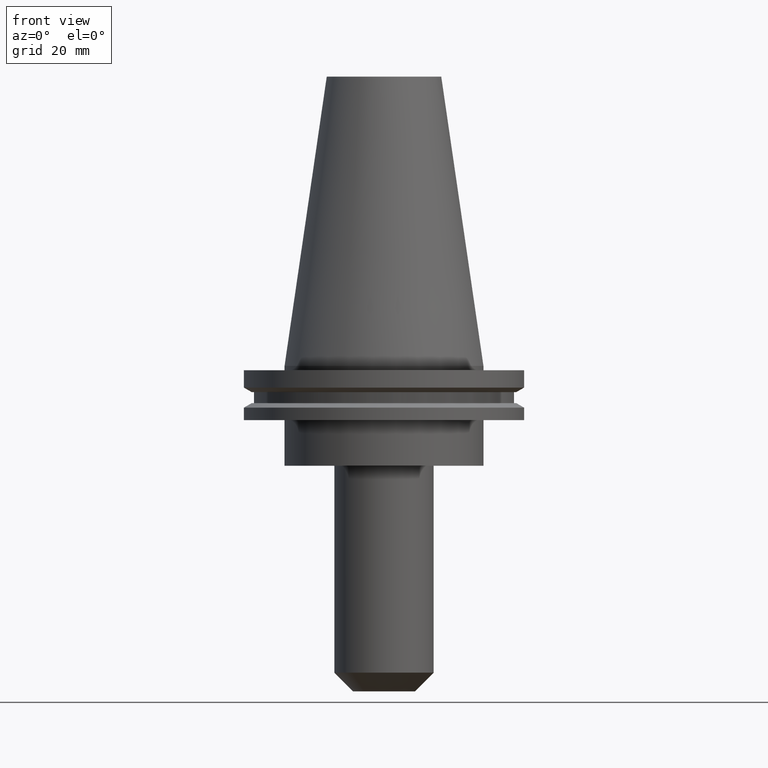
[diagram: clean part render]
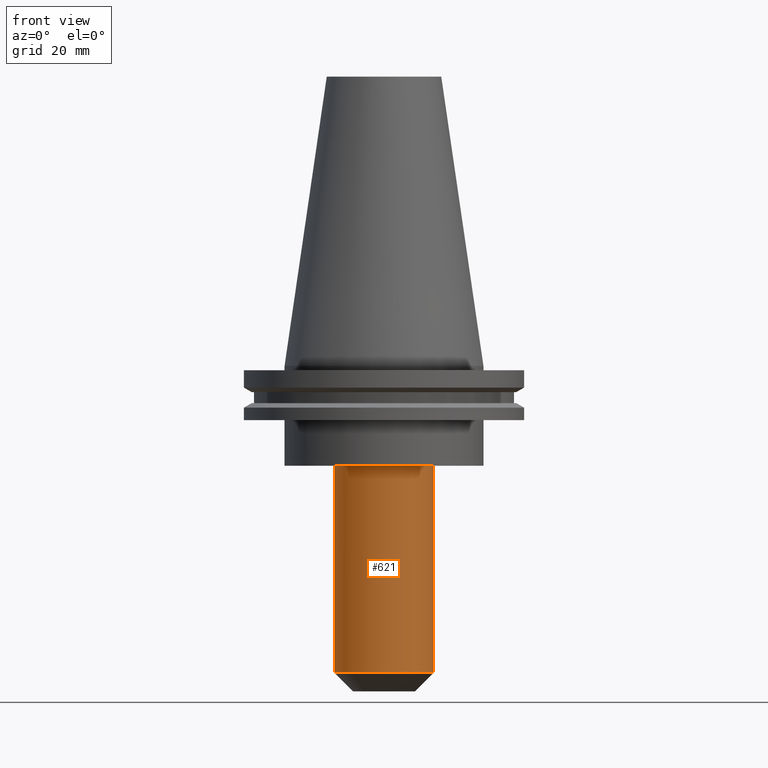
[diagram: same view with one face highlighted and labeled with its STEP entity id]
A machine part, front view. The second image highlights one B-rep face of the part: STEP entity #621.
In plain terms, the highlighted cylindrical surface (partial cylindrical patch) has radius 17.45 mm, axis along (-0, -0, 1).
Its self-contained STEP definition (entity closure, byte-faithful):
#5 = DIRECTION ( 'NONE',  ( -0.000000000000000000, -0.000000000000000000, 1.000000000000000000 ) ) ;
#9 = CARTESIAN_POINT ( 'NONE',  ( 0.000000000000000000, 0.000000000000000000, 0.000000000000000000 ) ) ;
#65 = VERTEX_POINT ( 'NONE', #692 ) ;
#74 = DIRECTION ( 'NONE',  ( -0.000000000000000000, -0.000000000000000000, 1.000000000000000000 ) ) ;
#84 = CARTESIAN_POINT ( 'NONE',  ( -17.44999999999999218, 2.137008664512130386E-15, -107.7000000000000028 ) ) ;
#145 = ORIENTED_EDGE ( 'NONE', *, *, #822, .T. ) ;
#161 = ORIENTED_EDGE ( 'NONE', *, *, #810, .T. ) ;
#164 = VECTOR ( 'NONE', #610, 1000.000000000000000 ) ;
#197 = ORIENTED_EDGE ( 'NONE', *, *, #593, .F. ) ;
#198 = EDGE_CURVE ( 'NONE', #335, #364, #533, .T. ) ;
#206 = DIRECTION ( 'NONE',  ( 1.000000000000000000, 0.000000000000000000, 0.000000000000000000 ) ) ;
#207 = VECTOR ( 'NONE', #5, 1000.000000000000000 ) ;
#211 = DIRECTION ( 'NONE',  ( 0.000000000000000000, 0.000000000000000000, -1.000000000000000000 ) ) ;
#281 = AXIS2_PLACEMENT_3D ( 'NONE', #607, #211, #286 ) ;
#286 = DIRECTION ( 'NONE',  ( 1.000000000000000000, 0.000000000000000000, 0.000000000000000000 ) ) ;
#297 = EDGE_LOOP ( 'NONE', ( #197, #798, #161, #145 ) ) ;
#318 = DIRECTION ( 'NONE',  ( 1.000000000000000000, 0.000000000000000000, 0.000000000000000000 ) ) ;
#335 = VERTEX_POINT ( 'NONE', #84 ) ;
#364 = VERTEX_POINT ( 'NONE', #596 ) ;
#384 = FACE_OUTER_BOUND ( 'NONE', #297, .T. ) ;
#420 = CARTESIAN_POINT ( 'NONE',  ( 17.44999999999998863, 0.000000000000000000, 0.000000000000000000 ) ) ;
#421 = AXIS2_PLACEMENT_3D ( 'NONE', #644, #710, #318 ) ;
#533 = CIRCLE ( 'NONE', #421, 17.44999999999999218 ) ;
#554 = LINE ( 'NONE', #420, #164 ) ;
#562 = AXIS2_PLACEMENT_3D ( 'NONE', #9, #74, #206 ) ;
#593 = EDGE_CURVE ( 'NONE', #335, #65, #785, .T. ) ;
#596 = CARTESIAN_POINT ( 'NONE',  ( 17.44999999999999218, 0.000000000000000000, -107.7000000000000028 ) ) ;
#607 = CARTESIAN_POINT ( 'NONE',  ( 0.000000000000000000, 0.000000000000000000, -35.04999999999999716 ) ) ;
#610 = DIRECTION ( 'NONE',  ( -0.000000000000000000, -0.000000000000000000, 1.000000000000000000 ) ) ;
#621 = ADVANCED_FACE ( 'NONE', ( #384 ), #717, .T. ) ;
#644 = CARTESIAN_POINT ( 'NONE',  ( 0.000000000000000000, 0.000000000000000000, -107.7000000000000028 ) ) ;
#652 = CIRCLE ( 'NONE', #281, 17.44999999999998863 ) ;
#692 = CARTESIAN_POINT ( 'NONE',  ( -17.44999999999998863, 2.137008664512129992E-15, -35.04999999999999716 ) ) ;
#710 = DIRECTION ( 'NONE',  ( -0.000000000000000000, -0.000000000000000000, 1.000000000000000000 ) ) ;
#717 = CYLINDRICAL_SURFACE ( 'NONE', #562, 17.44999999999998863 ) ;
#729 = CARTESIAN_POINT ( 'NONE',  ( -17.44999999999998863, 2.137008664512129992E-15, 0.000000000000000000 ) ) ;
#785 = LINE ( 'NONE', #729, #207 ) ;
#798 = ORIENTED_EDGE ( 'NONE', *, *, #198, .T. ) ;
#807 = VERTEX_POINT ( 'NONE', #808 ) ;
#808 = CARTESIAN_POINT ( 'NONE',  ( 17.44999999999998863, 0.000000000000000000, -35.04999999999999716 ) ) ;
#810 = EDGE_CURVE ( 'NONE', #364, #807, #554, .T. ) ;
#822 = EDGE_CURVE ( 'NONE', #807, #65, #652, .T. ) ;